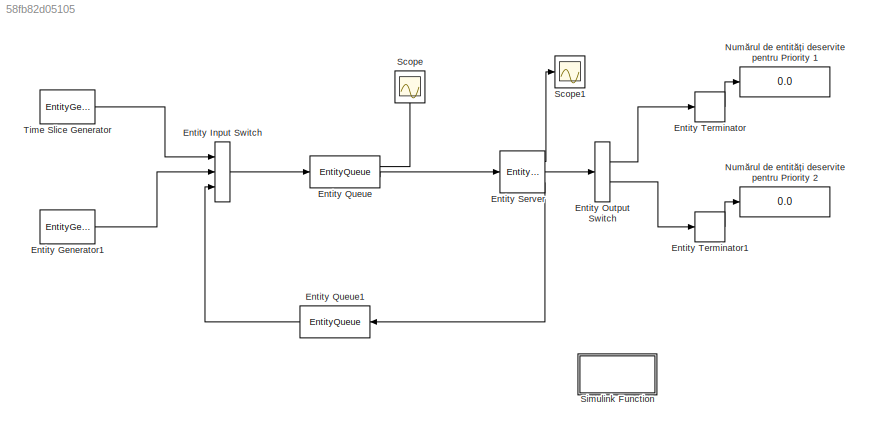
MODEL slx_58fb82d05105
KIND model
CONFIG AbsTol = auto
CONFIG FixedStep = auto
CONFIG MaxStep = auto
CONFIG MinStep = auto
CONFIG RelTol = 1e-3
CONFIG SampleTimeConstraint = Unconstrained
CONFIG Solver = VariableStepDiscrete
CONFIG SolverMode = Auto
CONFIG SolverName = VariableStepDiscrete
CONFIG StartTime = 0.0
CONFIG StopTime = 100
BLOCK [EntityGenerator] Entity Generator1
  AttributeInitialValue = 2|0.18|0
  AttributeName = Priority|ServiceTime|Preempted
  EntityType = Structured
  EntityTypeName = Entity
  IntergenerationTimeAction = dt = exprnd(0.2);
  OutputPortMap = o3
  OutputPortMessageModes = m
  Ports = [0, 1]
  TimeSource = MATLAB action
BLOCK [EntityInputSwitch] Entity Input Switch
  InputPortMap = u1,u2,u3
  InputPortMessageModes = m,m,m
  NumberInputPorts = 3
  OutputPortMap = o0
  OutputPortMessageModes = m
  Ports = [3, 1]
BLOCK [EntityOutputSwitch] Entity Output Switch
  InputPortMap = u1
  InputPortMessageModes = m
  OutputPortMap = o0,o1
  OutputPortMessageModes = m,m
  Ports = [1, 2]
  SwitchAttributeName = Priority
  SwitchingCriterion = From attribute
BLOCK [EntityQueue] Entity Queue
  Capacity = 50
  InputPortMap = u0
  InputPortMessageModes = m
  NumberEntitiesInBlock = on
  OutputPortMap = o1,o5
  OutputPortMessageModes = n,m
  Ports = [1, 2]
  PrioritySource = Priority
  QueueType = Priority
BLOCK [EntityQueue] Entity Queue1
  Capacity = 50
  InputPortMap = u0
  InputPortMessageModes = m
  OutputPortMap = o5
  OutputPortMessageModes = m
  Ports = [1, 1]
BLOCK [EntityServer] Entity Server
  Capacity = 1
  ExitAction = f(entity.Preempted);
  InputPortMap = u2
  InputPortMessageModes = m
  OutputPortMap = o5,o9,o10
  OutputPortMessageModes = n,m,m
  PermitPreemptionBasedOnAttribute = on
  Ports = [1, 3]
  PreemptAction = entity.Preempted = entity.Preempted +1;
  ResidualTimeAttributeName = ServiceTime
  ServiceTimeSource = Attribute
  SortingAttributeName = Priority
  Utilization = on
  WriteResidualTimeToAttribute = on
BLOCK [EntityTerminator] Entity Terminator
  InputPortMap = u0
  InputPortMessageModes = m
  NumberEntitiesArrived = on
  OutputPortMap = o0
  Ports = [1, 1]
BLOCK [EntityTerminator] Entity Terminator1
  InputPortMap = u0
  InputPortMessageModes = m
  NumberEntitiesArrived = on
  OutputPortMap = o0
  Ports = [1, 1]
BLOCK [Display] Numărul de entități deservite pentru Priority 1
  Decimation = 1
  Format = long
  Ports = [1]
BLOCK [Display] Numărul de entități deservite pentru Priority 2
  Decimation = 1
  Ports = [1]
BLOCK [Scope] Scope
  Ports = [1]
  ScopeSpecificationString = C++SS(StrPVP('SaveName','ScopeData1'))
BLOCK [Scope] Scope1
  Ports = [1]
  ScopeSpecificationString = C++SS(StrPVP('SaveName','ScopeData2'))
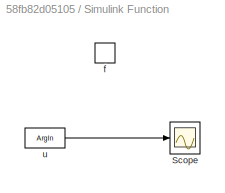
BLOCK [SubSystem] Simulink Function
  Ports = [0, 0, 0, 1]
  RequestExecContextInheritance = off
  TreatAsAtomicUnit = on
  Variant = off
BLOCK [Scope] Simulink Function/Scope
  Ports = [1]
  ScopeSpecificationString = Simulink.scopes.TimeScopeBlockCfg('CurrentConfiguration', extmgr.ConfigurationSet(extmgr.Configuration('Core','General UI',true),extmgr.Configuration('Core','Source UI',true),extmgr.Configuration('Sources','WiredSimulink',true,'DataLoggingVariableName','ScopeData1'),extmgr.Configuration('Visuals','Time Domain',true,'SerializedDisplays',{struct('MinYLimReal','-0.625','MaxYLimReal','5.625','YLabelRe...<+1505ch>
BLOCK [TriggerPort] Simulink Function/f
  FunctionName = f
  IsSimulinkFunction = on
  Ports = []
  StatesWhenEnabling = held
  TriggerType = function-call
  VariantControl = Variant
BLOCK [ArgIn] Simulink Function/u
  ArgumentName = u
  DisableCoverage = on
BLOCK [EntityGenerator] Time Slice Generator
  AttributeInitialValue = 1|0|0
  AttributeName = Priority|ServiceTime|Preempted
  EntityType = Structured
  EntityTypeName = Entity
  OutputPortMap = o3
  OutputPortMessageModes = m
  Period = 0.01
  Ports = [0, 1]
LINE Entity Generator1:1 -> Entity Input Switch:2
LINE Entity Input Switch:1 -> Entity Queue:1
LINE Entity Output Switch:1 -> Entity Terminator:1
LINE Entity Output Switch:2 -> Entity Terminator1:1
LINE Entity Queue1:1 -> Entity Input Switch:3
LINE Entity Queue:1 -> Scope:1
LINE Entity Queue:2 -> Entity Server:1
LINE Entity Server:1 -> Scope1:1
LINE Entity Server:2 -> Entity Output Switch:1
LINE Entity Server:3 -> Entity Queue1:1
LINE Entity Terminator1:1 -> Numărul de entități deservite pentru Priority 2:1
LINE Entity Terminator:1 -> Numărul de entități deservite pentru Priority 1:1
LINE Simulink Function/u:1 -> Simulink Function/Scope:1
LINE Time Slice Generator:1 -> Entity Input Switch:1
